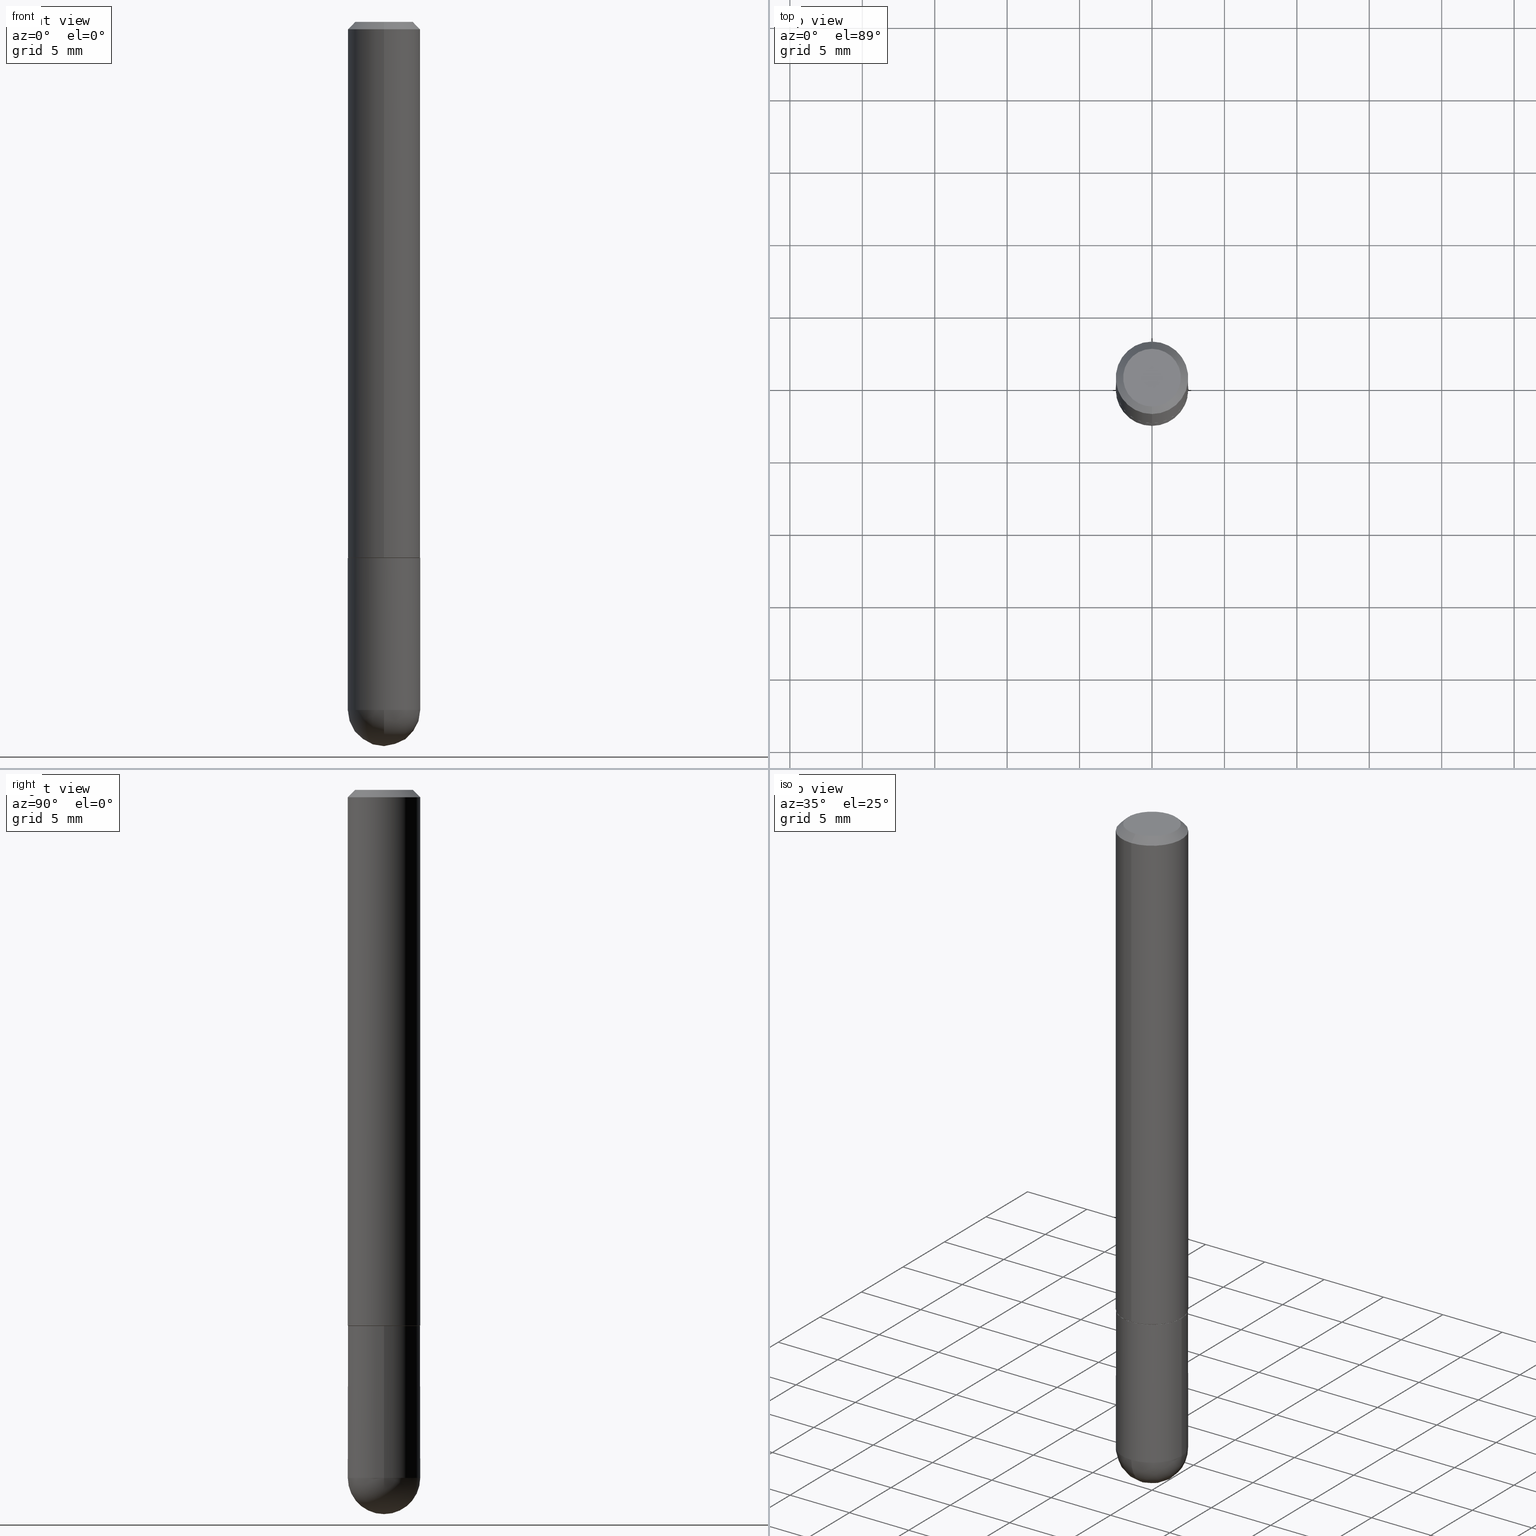
[diagram: canonical four-view strip — front | top / right | iso, engineering-drawing reading convention]
A machine part, canonical four-view strip (front | top / right | iso — engineering-drawing reading convention). The complete STEP part file that produces these views, byte-faithful:
ISO-10303-21;
HEADER;
FILE_DESCRIPTION (( 'STEP AP203' ),
    '1' );
FILE_NAME ('44600.STEP',
    '2024-04-10T11:46:40',
    ( '' ),
    ( '' ),
    'SwSTEP 2.0',
    'SolidWorks 2023',
    '' );
FILE_SCHEMA (( 'CONFIG_CONTROL_DESIGN' ));
ENDSEC;

DATA;
#1 = EDGE_CURVE ( 'NONE', #101, #387, #208, .T. ) ;
#2 = VERTEX_POINT ( 'NONE', #285 ) ;
#3 = APPROVAL_DATE_TIME ( #178, #166 ) ;
#4 = CC_DESIGN_PERSON_AND_ORGANIZATION_ASSIGNMENT ( #107, #111, ( #126 ) ) ;
#5 = ORIENTED_EDGE ( 'NONE', *, *, #114, .T. ) ;
#6 = DATE_AND_TIME ( #364, #259 ) ;
#7 = AXIS2_PLACEMENT_3D ( 'NONE', #185, #153, #365 ) ;
#8 = ORGANIZATION ( 'UNSPECIFIED', 'UNSPECIFIED', '' ) ;
#9 = COORDINATED_UNIVERSAL_TIME_OFFSET ( 5, 0, .BEHIND. ) ;
#10 = FACE_OUTER_BOUND ( 'NONE', #327, .T. ) ;
#11 = ORIENTED_EDGE ( 'NONE', *, *, #400, .F. ) ;
#12 = CARTESIAN_POINT ( 'NONE',  ( 3.562445319696780792E-29, -5.085853396112982334E-15, -1.456700000000000106 ) ) ;
#13 = ADVANCED_FACE ( 'NONE', ( #56 ), #405, .F. ) ;
#14 = EDGE_CURVE ( 'NONE', #80, #296, #319, .T. ) ;
#15 = ORIENTED_EDGE ( 'NONE', *, *, #157, .T. ) ;
#16 = DIRECTION ( 'NONE',  ( -2.445468806185136597E-29, 3.491481338843145583E-15, 1.000000000000000000 ) ) ;
#17 = CIRCLE ( 'NONE', #369, 0.09845000000000017626 ) ;
#18 = DIRECTION ( 'NONE',  ( 1.000000000000000000, -6.982962677686265133E-15, 0.000000000000000000 ) ) ;
#19 =( NAMED_UNIT ( * ) PLANE_ANGLE_UNIT ( ) SI_UNIT ( $, .RADIAN. ) );
#20 = DIRECTION ( 'NONE',  ( 4.937700262164543309E-15, 0.7071067811865444641, -0.7071067811865506814 ) ) ;
#21 = DIRECTION ( 'NONE',  ( -2.445558673506405004E-29, 3.491352643724158830E-15, 1.000000000000000000 ) ) ;
#22 = DIRECTION ( 'NONE',  ( -1.000000000000000000, 6.982962677686265922E-15, -4.876176775795935793E-29 ) ) ;
#23 = DIRECTION ( 'NONE',  ( -2.445468806185136877E-29, 3.491481338843145188E-15, 1.000000000000000000 ) ) ;
#24 = DIRECTION ( 'NONE',  ( -2.445558673506405004E-29, 3.491352643724158830E-15, 1.000000000000000000 ) ) ;
#25 = AXIS2_PLACEMENT_3D ( 'NONE', #318, #70, #293 ) ;
#26 = DATE_AND_TIME ( #313, #79 ) ;
#27 = CARTESIAN_POINT ( 'NONE',  ( 4.573148941006514739E-29, -6.529244677703625427E-15, -1.870050000000000212 ) ) ;
#28 = CARTESIAN_POINT ( 'NONE',  ( 0.09844999999999999585, -5.773513541911023795E-15, -1.456700000000000106 ) ) ;
#29 = FACE_OUTER_BOUND ( 'NONE', #250, .T. ) ;
#30 = AXIS2_PLACEMENT_3D ( 'NONE', #179, #82, #303 ) ;
#31 = PERSON_AND_ORGANIZATION ( #115, #8 ) ;
#32 = DIRECTION ( 'NONE',  ( -2.445468806185136597E-29, 3.491481338843145583E-15, 1.000000000000000000 ) ) ;
#33 = ADVANCED_FACE ( 'NONE', ( #192 ), #131, .T. ) ;
#34 = APPROVAL ( #77, 'UNSPECIFIED' ) ;
#35 = CIRCLE ( 'NONE', #30, 0.09845000000000000973 ) ;
#36 = AXIS2_PLACEMENT_3D ( 'NONE', #129, #305, #375 ) ;
#37 = DIRECTION ( 'NONE',  ( -2.445558673506405004E-29, 3.491352643724158830E-15, 1.000000000000000000 ) ) ;
#38 = CYLINDRICAL_SURFACE ( 'NONE', #45, 0.09845000000000007911 ) ;
#39 = CARTESIAN_POINT ( 'NONE',  ( 3.562314409969888915E-29, -5.086040866292811234E-15, -1.456700000000000106 ) ) ;
#40 = EDGE_CURVE ( 'NONE', #237, #2, #163, .T. ) ;
#41 = DATE_TIME_ROLE ( 'creation_date' ) ;
#42 = ORIENTED_EDGE ( 'NONE', *, *, #320, .T. ) ;
#43 = DATE_TIME_ROLE ( 'classification_date' ) ;
#44 = CARTESIAN_POINT ( 'NONE',  ( 0.000000000000000000, 0.000000000000000000, 0.000000000000000000 ) ) ;
#45 = AXIS2_PLACEMENT_3D ( 'NONE', #264, #134, #142 ) ;
#46 = ORIENTED_EDGE ( 'NONE', *, *, #322, .T. ) ;
#47 = APPROVAL ( #410, 'UNSPECIFIED' ) ;
#48 = CARTESIAN_POINT ( 'NONE',  ( 6.874726756182577224E-16, 0.09844999999999333451, -1.870050000000000434 ) ) ;
#49 = ORIENTED_EDGE ( 'NONE', *, *, #352, .T. ) ;
#50 = LINE ( 'NONE', #57, #283 ) ;
#51 = VERTEX_POINT ( 'NONE', #152 ) ;
#52 = FACE_OUTER_BOUND ( 'NONE', #224, .T. ) ;
#53 = AXIS2_PLACEMENT_3D ( 'NONE', #204, #32, #164 ) ;
#54 = ORIENTED_EDGE ( 'NONE', *, *, #40, .T. ) ;
#55 = DIRECTION ( 'NONE',  ( 1.000000000000000000, -6.982962677686266711E-15, 4.876176775795935793E-29 ) ) ;
#56 = FACE_OUTER_BOUND ( 'NONE', #84, .T. ) ;
#57 = CARTESIAN_POINT ( 'NONE',  ( 6.874726756182134475E-16, 0.09844999999999994034, -0.02000000000000036818 ) ) ;
#58 = VERTEX_POINT ( 'NONE', #399 ) ;
#59 = VERTEX_POINT ( 'NONE', #28 ) ;
#60 = EDGE_CURVE ( 'NONE', #387, #101, #253, .T. ) ;
#61 = PLANE ( 'NONE',  #87 ) ;
#62 = VECTOR ( 'NONE', #379, 39.37007874015748143 ) ;
#63 = SECURITY_CLASSIFICATION ( '', '', #234 ) ;
#64 = CYLINDRICAL_SURFACE ( 'NONE', #149, 0.09845000000000007911 ) ;
#65 = VECTOR ( 'NONE', #329, 39.37007874015748143 ) ;
#66 = FACE_OUTER_BOUND ( 'NONE', #267, .T. ) ;
#67 = CARTESIAN_POINT ( 'NONE',  ( -6.754160278806068125E-16, -0.09845000000000007911, -0.01999999999999967429 ) ) ;
#68 = ORIENTED_EDGE ( 'NONE', *, *, #322, .F. ) ;
#69 = APPROVAL_ROLE ( '' ) ;
#70 = DIRECTION ( 'NONE',  ( -2.445468806185136597E-29, 3.491481338843145583E-15, 1.000000000000000000 ) ) ;
#71 = CARTESIAN_POINT ( 'NONE',  ( -6.874726756182134475E-16, -0.09845000000000007911, 3.437236677746436719E-16 ) ) ;
#72 = ADVANCED_FACE ( 'NONE', ( #288 ), #61, .F. ) ;
#73 = ORIENTED_EDGE ( 'NONE', *, *, #255, .F. ) ;
#74 = CALENDAR_DATE ( 2024, 10, 4 ) ;
#75 = CARTESIAN_POINT ( 'NONE',  ( 3.562314409969888915E-29, -5.086040866292811234E-15, -1.456700000000000106 ) ) ;
#76 = EDGE_LOOP ( 'NONE', ( #177, #54, #389, #363, #159 ) ) ;
#77 = APPROVAL_STATUS ( 'not_yet_approved' ) ;
#78 = FACE_OUTER_BOUND ( 'NONE', #88, .T. ) ;
#79 = LOCAL_TIME ( 7, 46, 40.00000000000000000, #191 ) ;
#80 = VERTEX_POINT ( 'NONE', #118 ) ;
#81 = EDGE_CURVE ( 'NONE', #138, #296, #17, .T. ) ;
#82 = DIRECTION ( 'NONE',  ( -2.445468806185136597E-29, 3.491481338843145583E-15, 1.000000000000000000 ) ) ;
#83 = DIRECTION ( 'NONE',  ( 1.000000000000000000, -6.982962677686265922E-15, 4.883557194083112340E-29 ) ) ;
#84 = EDGE_LOOP ( 'NONE', ( #143, #354 ) ) ;
#85 = DIRECTION ( 'NONE',  ( -2.445558673506405004E-29, 3.491352643724158830E-15, 1.000000000000000000 ) ) ;
#86 = SPHERICAL_SURFACE ( 'NONE', #173, 0.09845000000000017626 ) ;
#87 = AXIS2_PLACEMENT_3D ( 'NONE', #402, #252, #22 ) ;
#88 = EDGE_LOOP ( 'NONE', ( #175, #308, #299, #68 ) ) ;
#89 = VERTEX_POINT ( 'NONE', #127 ) ;
#90 = DIRECTION ( 'NONE',  ( -2.445468806185136597E-29, 3.491481338843145583E-15, 1.000000000000000000 ) ) ;
#91 = CONICAL_SURFACE ( 'NONE', #215, 0.09744999999999999496, 0.7853981633974910226 ) ;
#92 = ORIENTED_EDGE ( 'NONE', *, *, #81, .T. ) ;
#93 = LOCAL_TIME ( 7, 46, 40.00000000000000000, #244 ) ;
#94 = EDGE_CURVE ( 'NONE', #237, #292, #342, .T. ) ;
#95 = AXIS2_PLACEMENT_3D ( 'NONE', #193, #314, #162 ) ;
#96 = APPROVAL_PERSON_ORGANIZATION ( #165, #47, #219 ) ;
#97 = CARTESIAN_POINT ( 'NONE',  ( 4.891117347012815229E-31, -6.982705287448324760E-17, -0.02000000000000002123 ) ) ;
#98 = CARTESIAN_POINT ( 'NONE',  ( -0.09845000000000000973, 6.995293233558187021E-16, -4.842691596355954742E-30 ) ) ;
#99 = CARTESIAN_POINT ( 'NONE',  ( 6.995293233558375361E-16, 0.09844999999999508311, -1.455700000000000216 ) ) ;
#100 = ADVANCED_FACE ( 'NONE', ( #29 ), #64, .T. ) ;
#101 = VERTEX_POINT ( 'NONE', #388 ) ;
#102 = COORDINATED_UNIVERSAL_TIME_OFFSET ( 5, 0, .BEHIND. ) ;
#103 = AXIS2_PLACEMENT_3D ( 'NONE', #155, #241, #216 ) ;
#104 = DIRECTION ( 'NONE',  ( -2.445558673506405004E-29, 3.491352643724158830E-15, 1.000000000000000000 ) ) ;
#105 = EDGE_CURVE ( 'NONE', #292, #59, #412, .T. ) ;
#106 = ORIENTED_EDGE ( 'NONE', *, *, #14, .T. ) ;
#107 = PERSON_AND_ORGANIZATION ( #115, #8 ) ;
#108 = FACE_OUTER_BOUND ( 'NONE', #161, .T. ) ;
#109 = CARTESIAN_POINT ( 'NONE',  ( -6.874726756181783432E-16, -0.09845000000000524165, -1.455699999999999772 ) ) ;
#110 = EDGE_LOOP ( 'NONE', ( #239, #92, #324, #146 ) ) ;
#111 = PERSON_AND_ORGANIZATION_ROLE ( 'design_supplier' ) ;
#112 = LINE ( 'NONE', #307, #225 ) ;
#113 = ORIENTED_EDGE ( 'NONE', *, *, #320, .F. ) ;
#114 = EDGE_CURVE ( 'NONE', #101, #51, #351, .T. ) ;
#115 = PERSON ( 'UNSPECIFIED', 'UNSPECIFIED', 'UNSPECIFIED', ('UNSPECIFIED'), ('UNSPECIFIED'), ('UNSPECIFIED') ) ;
#116 = DIRECTION ( 'NONE',  ( -6.982962677686266711E-15, -1.000000000000000000, 2.803332984776052637E-15 ) ) ;
#117 = AXIS2_PLACEMENT_3D ( 'NONE', #97, #228, #199 ) ;
#118 = CARTESIAN_POINT ( 'NONE',  ( 0.09845000000000000973, -6.495115447616432074E-15, -1.870050000000000212 ) ) ;
#119 = ORIENTED_EDGE ( 'NONE', *, *, #114, .F. ) ;
#120 = CARTESIAN_POINT ( 'NONE',  ( -0.09845000000000000973, -5.108113448642400615E-15, -1.870050000000000212 ) ) ;
#121 = DIRECTION ( 'NONE',  ( 6.982962677686265922E-15, 1.000000000000000000, 0.000000000000000000 ) ) ;
#122 = ORIENTED_EDGE ( 'NONE', *, *, #137, .T. ) ;
#123 = DIRECTION ( 'NONE',  ( -2.445558673506405004E-29, 3.491352643724158830E-15, 1.000000000000000000 ) ) ;
#124 = FACE_OUTER_BOUND ( 'NONE', #148, .T. ) ;
#125 = AXIS2_PLACEMENT_3D ( 'NONE', #377, #279, #341 ) ;
#126 = PRODUCT_DEFINITION_FORMATION_WITH_SPECIFIED_SOURCE ( 'ANY', '', #197, .NOT_KNOWN. ) ;
#127 = CARTESIAN_POINT ( 'NONE',  ( -6.804897129404909484E-16, -0.09745000000000507423, -1.456699999999999884 ) ) ;
#128 = PRODUCT_DEFINITION ( 'UNKNOWN', '', #126, #372 ) ;
#129 = CARTESIAN_POINT ( 'NONE',  ( 5.478134220644876400E-16, 0.07845000000000000584, -2.610961254959012858E-16 ) ) ;
#130 = PERSON_AND_ORGANIZATION_ROLE ( 'creator' ) ;
#131 = SPHERICAL_SURFACE ( 'NONE', #125, 0.09845000000000017626 ) ;
#132 = VECTOR ( 'NONE', #21, 39.37007874015748143 ) ;
#133 = LOCAL_TIME ( 7, 46, 40.00000000000000000, #102 ) ;
#134 = DIRECTION ( 'NONE',  ( -2.445558673506405004E-29, 3.491352643724158830E-15, 1.000000000000000000 ) ) ;
#135 = CIRCLE ( 'NONE', #7, 0.09744999999999999496 ) ;
#136 =( GEOMETRIC_REPRESENTATION_CONTEXT ( 3 ) GLOBAL_UNCERTAINTY_ASSIGNED_CONTEXT ( ( #337 ) ) GLOBAL_UNIT_ASSIGNED_CONTEXT ( ( #248, #19, #300 ) ) REPRESENTATION_CONTEXT ( 'NONE', 'WORKASPACE' ) );
#137 = EDGE_CURVE ( 'NONE', #138, #2, #221, .T. ) ;
#138 = VERTEX_POINT ( 'NONE', #385 ) ;
#139 = PERSON_AND_ORGANIZATION_ROLE ( 'classification_officer' ) ;
#140 = CARTESIAN_POINT ( 'NONE',  ( 3.559999761023273732E-29, -5.082362043469258448E-15, -1.455699999999999994 ) ) ;
#141 = AXIS2_PLACEMENT_3D ( 'NONE', #140, #321, #227 ) ;
#142 = DIRECTION ( 'NONE',  ( -6.982962677686265922E-15, -1.000000000000000000, 3.491352643724158436E-15 ) ) ;
#143 = ORIENTED_EDGE ( 'NONE', *, *, #60, .T. ) ;
#144 = DATE_AND_TIME ( #291, #133 ) ;
#145 = CARTESIAN_POINT ( 'NONE',  ( 4.242029163092629052E-29, -7.003427045843674934E-15, -1.870050000000000212 ) ) ;
#146 = ORIENTED_EDGE ( 'NONE', *, *, #376, .F. ) ;
#147 = CARTESIAN_POINT ( 'NONE',  ( 4.242029163092629052E-29, -7.003427045843674934E-15, -1.870050000000000212 ) ) ;
#148 = EDGE_LOOP ( 'NONE', ( #323, #122, #189, #370 ) ) ;
#149 = AXIS2_PLACEMENT_3D ( 'NONE', #44, #37, #383 ) ;
#150 = DIRECTION ( 'NONE',  ( 6.982962677686265922E-15, 1.000000000000000000, -2.774858297271973643E-15 ) ) ;
#151 = CC_DESIGN_APPROVAL ( #34, ( #63 ) ) ;
#152 = CARTESIAN_POINT ( 'NONE',  ( -6.754160278806068125E-16, -0.09845000000000007911, -0.01999999999999967429 ) ) ;
#153 = DIRECTION ( 'NONE',  ( -2.445558673506405004E-29, 3.491352643724158830E-15, 1.000000000000000000 ) ) ;
#154 = VERTEX_POINT ( 'NONE', #109 ) ;
#155 = CARTESIAN_POINT ( 'NONE',  ( 3.562445319696780792E-29, -5.085853396112982334E-15, -1.456700000000000106 ) ) ;
#156 = APPLICATION_CONTEXT ( 'configuration controlled 3d designs of mechanical parts and assemblies' ) ;
#157 = EDGE_CURVE ( 'NONE', #356, #154, #332, .T. ) ;
#158 = CC_DESIGN_PERSON_AND_ORGANIZATION_ASSIGNMENT ( #297, #139, ( #63 ) ) ;
#159 = ORIENTED_EDGE ( 'NONE', *, *, #105, .F. ) ;
#160 = APPROVAL_DATE_TIME ( #26, #47 ) ;
#161 = EDGE_LOOP ( 'NONE', ( #49, #202, #11, #73, #106 ) ) ;
#162 = DIRECTION ( 'NONE',  ( -6.982962677686266711E-15, -1.000000000000000000, 3.491352643724158830E-15 ) ) ;
#163 = CIRCLE ( 'NONE', #190, 0.09845000000000000973 ) ;
#164 = DIRECTION ( 'NONE',  ( 1.000000000000000000, -6.982962677686266711E-15, 4.876176775795935793E-29 ) ) ;
#165 = PERSON_AND_ORGANIZATION ( #115, #8 ) ;
#166 = APPROVAL ( #268, 'UNSPECIFIED' ) ;
#167 = EDGE_CURVE ( 'NONE', #154, #51, #205, .T. ) ;
#168 = ORIENTED_EDGE ( 'NONE', *, *, #60, .F. ) ;
#169 = PERSON_AND_ORGANIZATION ( #115, #8 ) ;
#170 = CARTESIAN_POINT ( 'NONE',  ( 6.959766096770540912E-16, 0.09744999999999490181, -1.456700000000000328 ) ) ;
#171 = ORIENTED_EDGE ( 'NONE', *, *, #271, .F. ) ;
#172 = PERSON_AND_ORGANIZATION_ROLE ( 'creator' ) ;
#173 = AXIS2_PLACEMENT_3D ( 'NONE', #147, #273, #150 ) ;
#174 = DIRECTION ( 'NONE',  ( -1.000000000000000000, 7.105427357601001070E-15, -4.926315508542082329E-29 ) ) ;
#175 = ORIENTED_EDGE ( 'NONE', *, *, #287, .T. ) ;
#176 = DIRECTION ( 'NONE',  ( -2.445558673506405004E-29, 3.491352643724158830E-15, 1.000000000000000000 ) ) ;
#177 = ORIENTED_EDGE ( 'NONE', *, *, #94, .F. ) ;
#178 = DATE_AND_TIME ( #390, #93 ) ;
#179 = CARTESIAN_POINT ( 'NONE',  ( 4.573148941006514739E-29, -6.529244677703625427E-15, -1.870050000000000212 ) ) ;
#180 = DIRECTION ( 'NONE',  ( -2.445468806185136597E-29, 3.491481338843145583E-15, 1.000000000000000000 ) ) ;
#181 = AXIS2_PLACEMENT_3D ( 'NONE', #186, #90, #220 ) ;
#182 = LINE ( 'NONE', #301, #65 ) ;
#183 = ADVANCED_FACE ( 'NONE', ( #10 ), #310, .T. ) ;
#184 = APPLICATION_PROTOCOL_DEFINITION ( 'international standard', 'config_control_design', 1994, #156 ) ;
#185 = CARTESIAN_POINT ( 'NONE',  ( 3.562445319696780792E-29, -5.085853396112982334E-15, -1.456700000000000106 ) ) ;
#186 = CARTESIAN_POINT ( 'NONE',  ( 4.573148941006514739E-29, -6.529244677703625427E-15, -1.870050000000000212 ) ) ;
#187 = EDGE_CURVE ( 'NONE', #58, #51, #231, .T. ) ;
#188 = CC_DESIGN_DATE_AND_TIME_ASSIGNMENT ( #240, #43, ( #63 ) ) ;
#189 = ORIENTED_EDGE ( 'NONE', *, *, #40, .F. ) ;
#190 = AXIS2_PLACEMENT_3D ( 'NONE', #27, #180, #18 ) ;
#191 = COORDINATED_UNIVERSAL_TIME_OFFSET ( 5, 0, .BEHIND. ) ;
#192 = FACE_OUTER_BOUND ( 'NONE', #110, .T. ) ;
#193 = CARTESIAN_POINT ( 'NONE',  ( -6.260869577542474726E-46, 8.938204504504532174E-32, 2.560097880851795035E-17 ) ) ;
#194 = EDGE_CURVE ( 'NONE', #358, #89, #135, .T. ) ;
#195 = DIRECTION ( 'NONE',  ( 0.000000000000000000, 0.000000000000000000, 1.000000000000000000 ) ) ;
#196 = DIMENSIONAL_EXPONENTS ( 1.000000000000000000, 0.000000000000000000, 0.000000000000000000, 0.000000000000000000, 0.000000000000000000, 0.000000000000000000, 0.000000000000000000 ) ;
#197 = PRODUCT ( '44600', '44600', '', ( #408 ) ) ;
#198 = CC_DESIGN_PERSON_AND_ORGANIZATION_ASSIGNMENT ( #31, #346, ( #197 ) ) ;
#199 = DIRECTION ( 'NONE',  ( 6.982962677686265922E-15, 1.000000000000000000, -3.511930032484848199E-15 ) ) ;
#200 = AXIS2_PLACEMENT_3D ( 'NONE', #406, #24, #334 ) ;
#201 = DIRECTION ( 'NONE',  ( -2.445468806185136597E-29, 3.491481338843145583E-15, 1.000000000000000000 ) ) ;
#202 = ORIENTED_EDGE ( 'NONE', *, *, #94, .T. ) ;
#203 = ORIENTED_EDGE ( 'NONE', *, *, #194, .F. ) ;
#204 = CARTESIAN_POINT ( 'NONE',  ( 0.000000000000000000, 0.000000000000000000, 0.000000000000000000 ) ) ;
#205 = LINE ( 'NONE', #71, #295 ) ;
#206 = ORIENTED_EDGE ( 'NONE', *, *, #1, .F. ) ;
#207 = SHAPE_DEFINITION_REPRESENTATION ( #348, #391 ) ;
#208 = CIRCLE ( 'NONE', #200, 0.07845000000000000584 ) ;
#209 = CARTESIAN_POINT ( 'NONE',  ( 3.562445319696780792E-29, -5.085853396112982334E-15, -1.456700000000000106 ) ) ;
#210 = ORIENTED_EDGE ( 'NONE', *, *, #257, .T. ) ;
#211 = PLANE ( 'NONE',  #222 ) ;
#212 = CYLINDRICAL_SURFACE ( 'NONE', #304, 0.09845000000000000973 ) ;
#213 = ADVANCED_FACE ( 'NONE', ( #52 ), #211, .F. ) ;
#214 = ORIENTED_EDGE ( 'NONE', *, *, #257, .F. ) ;
#215 = AXIS2_PLACEMENT_3D ( 'NONE', #209, #176, #116 ) ;
#216 = DIRECTION ( 'NONE',  ( -6.982962677686266711E-15, -1.000000000000000000, 2.803332984776052637E-15 ) ) ;
#217 = CIRCLE ( 'NONE', #25, 0.09845000000000000973 ) ;
#218 = CARTESIAN_POINT ( 'NONE',  ( 4.242029163092629052E-29, -7.003427045843674934E-15, -1.870050000000000212 ) ) ;
#219 = APPROVAL_ROLE ( '' ) ;
#220 = DIRECTION ( 'NONE',  ( 1.000000000000000000, -6.982962677686265133E-15, 0.000000000000000000 ) ) ;
#221 = CIRCLE ( 'NONE', #403, 0.09845000000000017626 ) ;
#222 = AXIS2_PLACEMENT_3D ( 'NONE', #12, #251, #401 ) ;
#223 = CIRCLE ( 'NONE', #311, 0.09844999999999999585 ) ;
#224 = EDGE_LOOP ( 'NONE', ( #395, #203 ) ) ;
#225 = VECTOR ( 'NONE', #23, 39.37007874015748143 ) ;
#226 = EDGE_CURVE ( 'NONE', #358, #356, #182, .T. ) ;
#227 = DIRECTION ( 'NONE',  ( -6.982962677686265922E-15, -1.000000000000000000, 2.774858297271974826E-15 ) ) ;
#228 = DIRECTION ( 'NONE',  ( 2.445558673506405004E-29, -3.491352643724158830E-15, -1.000000000000000000 ) ) ;
#229 = DIRECTION ( 'NONE',  ( 2.445558673506405004E-29, -3.491352643724158830E-15, -1.000000000000000000 ) ) ;
#230 = DIRECTION ( 'NONE',  ( 1.000000000000000000, -6.982962677686265922E-15, 0.000000000000000000 ) ) ;
#231 = CIRCLE ( 'NONE', #289, 0.09845000000000000973 ) ;
#232 = CC_DESIGN_SECURITY_CLASSIFICATION ( #63, ( #126 ) ) ;
#233 = ORIENTED_EDGE ( 'NONE', *, *, #105, .T. ) ;
#234 = SECURITY_CLASSIFICATION_LEVEL ( 'unclassified' ) ;
#235 = DIRECTION ( 'NONE',  ( -2.445468806185136597E-29, 3.491481338843145583E-15, 1.000000000000000000 ) ) ;
#236 = DIRECTION ( 'NONE',  ( -4.851104656540959542E-15, -0.7071067811865493491, -0.7071067811865457964 ) ) ;
#237 = VERTEX_POINT ( 'NONE', #120 ) ;
#238 = CYLINDRICAL_SURFACE ( 'NONE', #53, 0.09845000000000000973 ) ;
#239 = ORIENTED_EDGE ( 'NONE', *, *, #137, .F. ) ;
#240 = DATE_AND_TIME ( #74, #353 ) ;
#241 = DIRECTION ( 'NONE',  ( -2.445558673506405004E-29, 3.491352643724158830E-15, 1.000000000000000000 ) ) ;
#242 = ORIENTED_EDGE ( 'NONE', *, *, #194, .T. ) ;
#243 = CC_DESIGN_DATE_AND_TIME_ASSIGNMENT ( #144, #41, ( #128 ) ) ;
#244 = COORDINATED_UNIVERSAL_TIME_OFFSET ( 5, 0, .BEHIND. ) ;
#245 = AXIS2_PLACEMENT_3D ( 'NONE', #357, #104, #355 ) ;
#246 = LINE ( 'NONE', #309, #132 ) ;
#247 = ORIENTED_EDGE ( 'NONE', *, *, #271, .T. ) ;
#248 =( CONVERSION_BASED_UNIT ( 'INCH', #396 ) LENGTH_UNIT ( ) NAMED_UNIT ( #196 ) );
#249 = ADVANCED_FACE ( 'NONE', ( #124 ), #86, .T. ) ;
#250 = EDGE_LOOP ( 'NONE', ( #336, #42, #171, #302 ) ) ;
#251 = DIRECTION ( 'NONE',  ( -2.445558673506404724E-29, 3.491352643724158830E-15, 1.000000000000000000 ) ) ;
#252 = DIRECTION ( 'NONE',  ( 2.438088387897960049E-29, -3.491481338843145188E-15, -1.000000000000000000 ) ) ;
#253 = CIRCLE ( 'NONE', #95, 0.07845000000000000584 ) ;
#254 = AXIS2_PLACEMENT_3D ( 'NONE', #262, #229, #350 ) ;
#255 = EDGE_CURVE ( 'NONE', #80, #59, #112, .T. ) ;
#256 = MANIFOLD_SOLID_BREP ( 'Body-Move/Copy2[1]', #380 ) ;
#257 = EDGE_CURVE ( 'NONE', #387, #58, #50, .T. ) ;
#258 = CIRCLE ( 'NONE', #361, 0.09845000000000000973 ) ;
#259 = LOCAL_TIME ( 7, 46, 40.00000000000000000, #9 ) ;
#260 = DIRECTION ( 'NONE',  ( 1.000000000000000000, 0.000000000000000000, 0.000000000000000000 ) ) ;
#261 = ADVANCED_FACE ( 'NONE', ( #371 ), #326, .T. ) ;
#262 = CARTESIAN_POINT ( 'NONE',  ( 4.891117347012815229E-31, -6.982705287448324760E-17, -0.02000000000000002123 ) ) ;
#263 = COORDINATED_UNIVERSAL_TIME_OFFSET ( 5, 0, .BEHIND. ) ;
#264 = CARTESIAN_POINT ( 'NONE',  ( 0.000000000000000000, 0.000000000000000000, 0.000000000000000000 ) ) ;
#265 = DIRECTION ( 'NONE',  ( -7.105427357601001070E-15, -1.000000000000000000, 0.000000000000000000 ) ) ;
#266 = DIRECTION ( 'NONE',  ( 1.000000000000000000, -6.982962677686265922E-15, 0.000000000000000000 ) ) ;
#267 = EDGE_LOOP ( 'NONE', ( #113, #15, #404, #393 ) ) ;
#268 = APPROVAL_STATUS ( 'not_yet_approved' ) ;
#269 =( LENGTH_UNIT ( ) NAMED_UNIT ( * ) SI_UNIT ( $, .METRE. ) );
#270 = DIRECTION ( 'NONE',  ( -6.982962677686266711E-15, -1.000000000000000000, 2.803332984776052637E-15 ) ) ;
#271 = EDGE_CURVE ( 'NONE', #51, #58, #258, .T. ) ;
#272 = EDGE_LOOP ( 'NONE', ( #119, #168, #210, #290 ) ) ;
#273 = DIRECTION ( 'NONE',  ( -1.000000000000000000, 6.982962677686265922E-15, -4.883557194083112901E-29 ) ) ;
#274 = AXIS2_PLACEMENT_3D ( 'NONE', #392, #280, #270 ) ;
#275 = ORIENTED_EDGE ( 'NONE', *, *, #400, .T. ) ;
#276 = PERSON_AND_ORGANIZATION ( #115, #8 ) ;
#277 = APPROVAL_PERSON_ORGANIZATION ( #384, #166, #325 ) ;
#278 = FACE_OUTER_BOUND ( 'NONE', #76, .T. ) ;
#279 = DIRECTION ( 'NONE',  ( -1.000000000000000000, 6.982962677686265922E-15, -4.883557194083112901E-29 ) ) ;
#280 = DIRECTION ( 'NONE',  ( -2.445558673506405004E-29, 3.491352643724158830E-15, 1.000000000000000000 ) ) ;
#281 = EDGE_LOOP ( 'NONE', ( #366, #242, #46, #338 ) ) ;
#282 = LINE ( 'NONE', #394, #386 ) ;
#283 = VECTOR ( 'NONE', #20, 39.37007874015748143 ) ;
#284 = APPLICATION_CONTEXT ( 'configuration controlled 3d designs of mechanical parts and assemblies' ) ;
#285 = CARTESIAN_POINT ( 'NONE',  ( -6.995293233557750189E-16, -0.09845000000000685147, -1.870049999999999990 ) ) ;
#286 = PERSON_AND_ORGANIZATION ( #115, #8 ) ;
#287 = EDGE_CURVE ( 'NONE', #89, #358, #339, .T. ) ;
#288 = FACE_OUTER_BOUND ( 'NONE', #330, .T. ) ;
#289 = AXIS2_PLACEMENT_3D ( 'NONE', #398, #123, #335 ) ;
#290 = ORIENTED_EDGE ( 'NONE', *, *, #187, .T. ) ;
#291 = CALENDAR_DATE ( 2024, 10, 4 ) ;
#292 = VERTEX_POINT ( 'NONE', #368 ) ;
#293 = DIRECTION ( 'NONE',  ( 1.000000000000000000, -6.982962677686265133E-15, 0.000000000000000000 ) ) ;
#294 = ADVANCED_FACE ( 'NONE', ( #278 ), #212, .T. ) ;
#295 = VECTOR ( 'NONE', #298, 39.37007874015748143 ) ;
#296 = VERTEX_POINT ( 'NONE', #48 ) ;
#297 = PERSON_AND_ORGANIZATION ( #115, #8 ) ;
#298 = DIRECTION ( 'NONE',  ( -2.445558673506405004E-29, 3.491352643724158830E-15, 1.000000000000000000 ) ) ;
#299 = ORIENTED_EDGE ( 'NONE', *, *, #373, .F. ) ;
#300 =( NAMED_UNIT ( * ) SI_UNIT ( $, .STERADIAN. ) SOLID_ANGLE_UNIT ( ) );
#301 = CARTESIAN_POINT ( 'NONE',  ( 6.924238959982530941E-16, 0.09744999999999490181, -1.456700000000000328 ) ) ;
#302 = ORIENTED_EDGE ( 'NONE', *, *, #167, .F. ) ;
#303 = DIRECTION ( 'NONE',  ( 1.000000000000000000, -6.982962677686265133E-15, 0.000000000000000000 ) ) ;
#304 = AXIS2_PLACEMENT_3D ( 'NONE', #333, #16, #55 ) ;
#305 = DIRECTION ( 'NONE',  ( 2.445558673506404724E-29, -3.491352643724158830E-15, -1.000000000000000000 ) ) ;
#306 = AXIS2_PLACEMENT_3D ( 'NONE', #343, #195, #260 ) ;
#307 = CARTESIAN_POINT ( 'NONE',  ( 0.09845000000000000973, -6.874726756182130531E-16, 4.800596035771099214E-30 ) ) ;
#308 = ORIENTED_EDGE ( 'NONE', *, *, #226, .T. ) ;
#309 = CARTESIAN_POINT ( 'NONE',  ( 6.995293233558190965E-16, 0.09845000000000007911, -3.437236677746436719E-16 ) ) ;
#310 = CONICAL_SURFACE ( 'NONE', #117, 0.09845000000000000973, 0.7853981633974473908 ) ;
#311 = AXIS2_PLACEMENT_3D ( 'NONE', #75, #235, #266 ) ;
#312 = CC_DESIGN_PERSON_AND_ORGANIZATION_ASSIGNMENT ( #286, #130, ( #128 ) ) ;
#313 = CALENDAR_DATE ( 2024, 10, 4 ) ;
#314 = DIRECTION ( 'NONE',  ( -2.445558673506405004E-29, 3.491352643724158830E-15, 1.000000000000000000 ) ) ;
#315 = CIRCLE ( 'NONE', #141, 0.09845000000000014850 ) ;
#316 = APPLICATION_PROTOCOL_DEFINITION ( 'international standard', 'config_control_design', 1994, #284 ) ;
#317 = PRODUCT_RELATED_PRODUCT_CATEGORY ( 'detail', '', ( #197 ) ) ;
#318 = CARTESIAN_POINT ( 'NONE',  ( 4.573148941006514739E-29, -6.529244677703625427E-15, -1.870050000000000212 ) ) ;
#319 = CIRCLE ( 'NONE', #181, 0.09845000000000000973 ) ;
#320 = EDGE_CURVE ( 'NONE', #356, #58, #246, .T. ) ;
#321 = DIRECTION ( 'NONE',  ( -2.445558673506405004E-29, 3.491352643724158830E-15, 1.000000000000000000 ) ) ;
#322 = EDGE_CURVE ( 'NONE', #89, #154, #282, .T. ) ;
#323 = ORIENTED_EDGE ( 'NONE', *, *, #81, .F. ) ;
#324 = ORIENTED_EDGE ( 'NONE', *, *, #14, .F. ) ;
#325 = APPROVAL_ROLE ( '' ) ;
#326 = CONICAL_SURFACE ( 'NONE', #274, 0.09744999999999999496, 0.7853981633974910226 ) ;
#327 = EDGE_LOOP ( 'NONE', ( #206, #5, #247, #214 ) ) ;
#328 = DIRECTION ( 'NONE',  ( -6.982962677686265922E-15, -1.000000000000000000, 3.511930032484848199E-15 ) ) ;
#329 = DIRECTION ( 'NONE',  ( 5.024295867788276960E-15, 0.7071067811865802133, 0.7071067811865149322 ) ) ;
#330 = EDGE_LOOP ( 'NONE', ( #275, #233 ) ) ;
#331 = ADVANCED_FACE ( 'NONE', ( #78 ), #91, .T. ) ;
#332 = CIRCLE ( 'NONE', #245, 0.09845000000000014850 ) ;
#333 = CARTESIAN_POINT ( 'NONE',  ( 0.000000000000000000, 0.000000000000000000, 0.000000000000000000 ) ) ;
#334 = DIRECTION ( 'NONE',  ( -6.982962677686266711E-15, -1.000000000000000000, 3.491352643724158830E-15 ) ) ;
#335 = DIRECTION ( 'NONE',  ( -6.982962677686265922E-15, -1.000000000000000000, 3.511930032484848199E-15 ) ) ;
#336 = ORIENTED_EDGE ( 'NONE', *, *, #373, .T. ) ;
#337 = UNCERTAINTY_MEASURE_WITH_UNIT (LENGTH_MEASURE( 1.000000000000000082E-05 ), #248, 'distance_accuracy_value', 'NONE');
#338 = ORIENTED_EDGE ( 'NONE', *, *, #157, .F. ) ;
#339 = CIRCLE ( 'NONE', #103, 0.09744999999999999496 ) ;
#340 = CONICAL_SURFACE ( 'NONE', #254, 0.09845000000000000973, 0.7853981633974473908 ) ;
#341 = DIRECTION ( 'NONE',  ( 6.982962677686265922E-15, 1.000000000000000000, -2.774858297271973643E-15 ) ) ;
#342 = LINE ( 'NONE', #98, #62 ) ;
#343 = CARTESIAN_POINT ( 'NONE',  ( 0.000000000000000000, 0.000000000000000000, 0.000000000000000000 ) ) ;
#344 = VECTOR ( 'NONE', #236, 39.37007874015748143 ) ;
#345 = CC_DESIGN_APPROVAL ( #47, ( #128 ) ) ;
#346 = PERSON_AND_ORGANIZATION_ROLE ( 'design_owner' ) ;
#347 = FACE_OUTER_BOUND ( 'NONE', #272, .T. ) ;
#348 = PRODUCT_DEFINITION_SHAPE ( 'NONE', 'NONE',  #128 ) ;
#349 = CC_DESIGN_PERSON_AND_ORGANIZATION_ASSIGNMENT ( #169, #172, ( #126 ) ) ;
#350 = DIRECTION ( 'NONE',  ( 6.982962677686265922E-15, 1.000000000000000000, -3.511930032484848199E-15 ) ) ;
#351 = LINE ( 'NONE', #67, #344 ) ;
#352 = EDGE_CURVE ( 'NONE', #296, #237, #35, .T. ) ;
#353 = LOCAL_TIME ( 7, 46, 40.00000000000000000, #263 ) ;
#354 = ORIENTED_EDGE ( 'NONE', *, *, #1, .T. ) ;
#355 = DIRECTION ( 'NONE',  ( -6.982962677686265922E-15, -1.000000000000000000, 2.774858297271974826E-15 ) ) ;
#356 = VERTEX_POINT ( 'NONE', #99 ) ;
#357 = CARTESIAN_POINT ( 'NONE',  ( 3.559999761023273732E-29, -5.082362043469258448E-15, -1.455699999999999994 ) ) ;
#358 = VERTEX_POINT ( 'NONE', #170 ) ;
#359 = APPROVAL_DATE_TIME ( #6, #34 ) ;
#360 = DIRECTION ( 'NONE',  ( -4.937700262164758668E-15, -0.7071067811865753283, 0.7071067811865198172 ) ) ;
#361 = AXIS2_PLACEMENT_3D ( 'NONE', #367, #85, #328 ) ;
#362 = CC_DESIGN_APPROVAL ( #166, ( #126 ) ) ;
#363 = ORIENTED_EDGE ( 'NONE', *, *, #255, .T. ) ;
#364 = CALENDAR_DATE ( 2024, 10, 4 ) ;
#365 = DIRECTION ( 'NONE',  ( -6.982962677686266711E-15, -1.000000000000000000, 2.803332984776052637E-15 ) ) ;
#366 = ORIENTED_EDGE ( 'NONE', *, *, #226, .F. ) ;
#367 = CARTESIAN_POINT ( 'NONE',  ( 4.891117347012815229E-31, -6.982705287448324760E-17, -0.02000000000000002123 ) ) ;
#368 = CARTESIAN_POINT ( 'NONE',  ( -0.09844999999999999585, -5.108113448642399037E-15, -1.456700000000000106 ) ) ;
#369 = AXIS2_PLACEMENT_3D ( 'NONE', #218, #83, #121 ) ;
#370 = ORIENTED_EDGE ( 'NONE', *, *, #352, .F. ) ;
#371 = FACE_OUTER_BOUND ( 'NONE', #281, .T. ) ;
#372 = DESIGN_CONTEXT ( 'detailed design', #284, 'design' ) ;
#373 = EDGE_CURVE ( 'NONE', #154, #356, #315, .T. ) ;
#374 = MANIFOLD_SOLID_BREP ( 'Body-Move/Copy2[2]', #378 ) ;
#375 = DIRECTION ( 'NONE',  ( 6.982962677686265922E-15, 1.000000000000000000, -3.491352643724158830E-15 ) ) ;
#376 = EDGE_CURVE ( 'NONE', #2, #80, #217, .T. ) ;
#377 = CARTESIAN_POINT ( 'NONE',  ( 4.242029163092629052E-29, -7.003427045843674934E-15, -1.870050000000000212 ) ) ;
#378 = CLOSED_SHELL ( 'NONE', ( #331, #100, #183, #382, #397, #261, #213, #13 ) ) ;
#379 = DIRECTION ( 'NONE',  ( -2.445468806185136877E-29, 3.491481338843145188E-15, 1.000000000000000000 ) ) ;
#380 = CLOSED_SHELL ( 'NONE', ( #411, #249, #33, #72, #294 ) ) ;
#381 = APPROVAL_PERSON_ORGANIZATION ( #276, #34, #69 ) ;
#382 = ADVANCED_FACE ( 'NONE', ( #347 ), #340, .T. ) ;
#383 = DIRECTION ( 'NONE',  ( -6.982962677686265922E-15, -1.000000000000000000, 3.491352643724158436E-15 ) ) ;
#384 = PERSON_AND_ORGANIZATION ( #115, #8 ) ;
#385 = CARTESIAN_POINT ( 'NONE',  ( 4.486995123120041491E-29, -7.341135059783980806E-15, -1.968500000000000361 ) ) ;
#386 = VECTOR ( 'NONE', #360, 39.37007874015748143 ) ;
#387 = VERTEX_POINT ( 'NONE', #409 ) ;
#388 = CARTESIAN_POINT ( 'NONE',  ( -6.068110479028916783E-16, -0.07845000000000000584, 2.994975937086782083E-16 ) ) ;
#389 = ORIENTED_EDGE ( 'NONE', *, *, #376, .T. ) ;
#390 = CALENDAR_DATE ( 2024, 10, 4 ) ;
#391 = ADVANCED_BREP_SHAPE_REPRESENTATION ( '44600', ( #256, #374, #306 ), #136 ) ;
#392 = CARTESIAN_POINT ( 'NONE',  ( 3.562445319696780792E-29, -5.085853396112982334E-15, -1.456700000000000106 ) ) ;
#393 = ORIENTED_EDGE ( 'NONE', *, *, #187, .F. ) ;
#394 = CARTESIAN_POINT ( 'NONE',  ( -6.804897129404909484E-16, -0.09745000000000507423, -1.456699999999999884 ) ) ;
#395 = ORIENTED_EDGE ( 'NONE', *, *, #287, .F. ) ;
#396 = LENGTH_MEASURE_WITH_UNIT ( LENGTH_MEASURE( 0.02539999999999999897 ), #269 );
#397 = ADVANCED_FACE ( 'NONE', ( #66 ), #38, .T. ) ;
#398 = CARTESIAN_POINT ( 'NONE',  ( 4.891117347012815229E-31, -6.982705287448324760E-17, -0.02000000000000002123 ) ) ;
#399 = CARTESIAN_POINT ( 'NONE',  ( 6.874726756182134475E-16, 0.09844999999999994034, -0.02000000000000036818 ) ) ;
#400 = EDGE_CURVE ( 'NONE', #59, #292, #223, .T. ) ;
#401 = DIRECTION ( 'NONE',  ( -6.982962677686265922E-15, -1.000000000000000000, 3.491352643724158830E-15 ) ) ;
#402 = CARTESIAN_POINT ( 'NONE',  ( 6.874726756182484532E-16, 0.09844999999999490270, -1.456700000000000328 ) ) ;
#403 = AXIS2_PLACEMENT_3D ( 'NONE', #145, #174, #265 ) ;
#404 = ORIENTED_EDGE ( 'NONE', *, *, #167, .T. ) ;
#405 = PLANE ( 'NONE',  #36 ) ;
#406 = CARTESIAN_POINT ( 'NONE',  ( -6.260869577542474726E-46, 8.938204504504532174E-32, 2.560097880851795035E-17 ) ) ;
#407 = AXIS2_PLACEMENT_3D ( 'NONE', #39, #201, #230 ) ;
#408 = MECHANICAL_CONTEXT ( 'NONE', #156, 'mechanical' ) ;
#409 = CARTESIAN_POINT ( 'NONE',  ( 6.176430488413504452E-16, 0.07845000000000000584, -2.482956360916422953E-16 ) ) ;
#410 = APPROVAL_STATUS ( 'not_yet_approved' ) ;
#411 = ADVANCED_FACE ( 'NONE', ( #108 ), #238, .T. ) ;
#412 = CIRCLE ( 'NONE', #407, 0.09844999999999999585 ) ;
ENDSEC;
END-ISO-10303-21;
